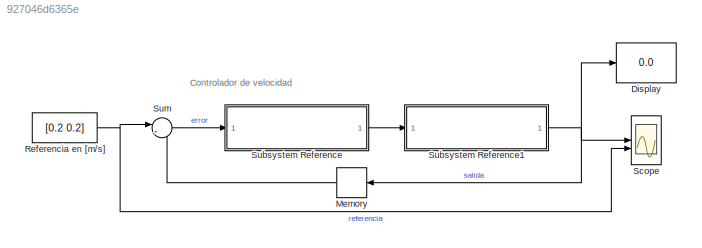
MODEL slx_927046d6365e
KIND model
CONFIG AbsTol = auto
CONFIG EnableMultiTasking = on
CONFIG FixedStep = auto
CONFIG MaxStep = auto
CONFIG MinStep = auto
CONFIG RelTol = 1e-3
CONFIG SampleTimeConstraint = Unconstrained
CONFIG SolverName = FixedStepAuto
CONFIG StartTime = 0.0
CONFIG StopTime = inf
BLOCK [Display] Display
  Decimation = 1
BLOCK [Memory] Memory
BLOCK [Constant] Referencia en [m//s]
  Value = [0.2 0.2]
BLOCK [Scope] Scope
  Floating = off
  NumInputPorts = 2
  ScopeSpecificationString = Simulink.scopes.TimeScopeBlockCfg('CurrentConfiguration', extmgr.ConfigurationSet(extmgr.Configuration('Core','General UI',true),extmgr.Configuration('Core','Source UI',true),extmgr.Configuration('Sources','WiredSimulink',true),extmgr.Configuration('Visuals','Time Domain',true,'SerializedDisplays',{struct('MinYLimReal','-0.08936','MaxYLimReal','0.52602','YLabelReal','','MinYLimMag','0.00000','MaxY...<+1444ch>
BLOCK [SubSystem] Subsystem Reference
  ReferencedSubsystem = ControladorBC
BLOCK [SubSystem] Subsystem Reference1
  ReferencedSubsystem = Piero
BLOCK [Sum] Sum
  Inputs = |+-
ANNOTATION (root): Controlador de velocidad
LINE Memory:1 -> Sum:2
NET Referencia en [m//s]:1 -> Scope:2, Sum:1
NET Subsystem Reference1:1 -> Display:1, Memory:1, Scope:1
LINE Subsystem Reference:1 -> Subsystem Reference1:1
LINE Sum:1 -> Subsystem Reference:1
note: NET lines group one-source signal fan-out (src -> all destinations, sorted); 1:1 wires keep LINE
